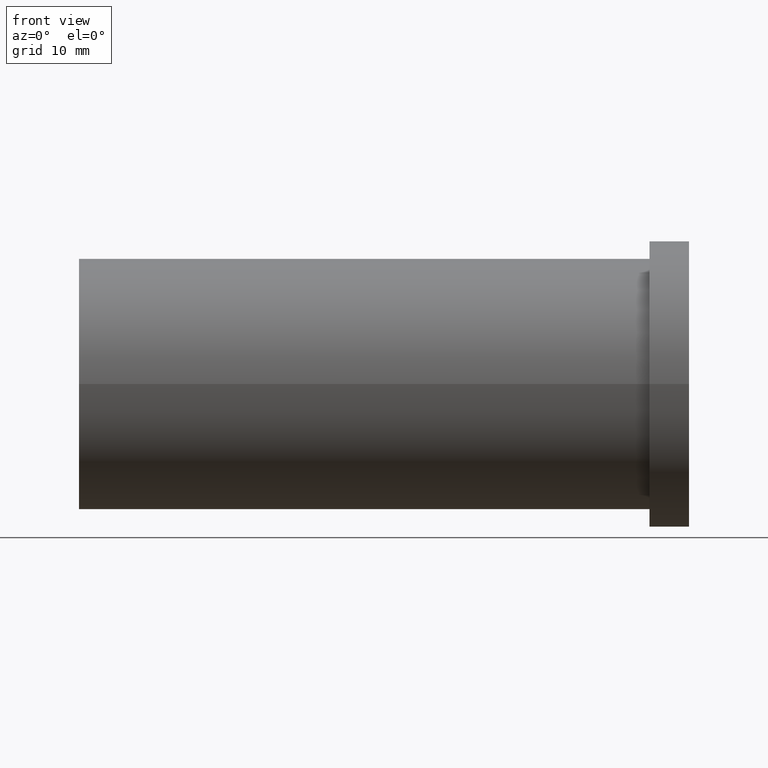
[diagram: clean part render]
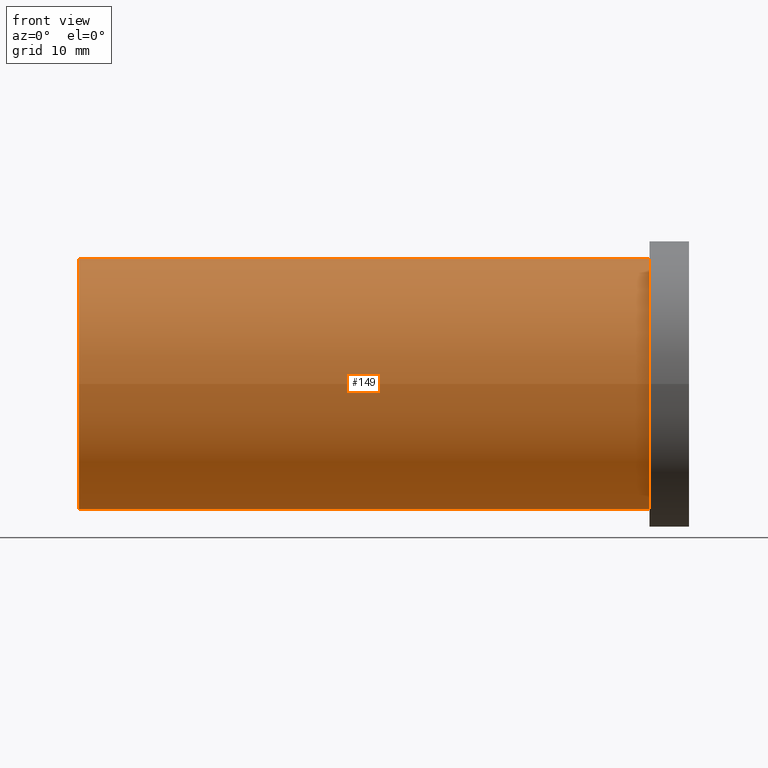
[diagram: same view with one face highlighted and labeled with its STEP entity id]
A machine part, front view. The second image highlights one B-rep face of the part: STEP entity #149.
In plain terms, the highlighted cylindrical surface (bore or boss wall) has radius 15.875 mm, axis along (1, 0, 0).
Its self-contained STEP definition (entity closure, byte-faithful):
#31=FACE_OUTER_BOUND('',#43,.T.);
#43=EDGE_LOOP('',(#130,#131,#132,#133));
#52=LINE('',#284,#59);
#59=VECTOR('',#243,15.8750000000001);
#69=CIRCLE('',#191,15.875);
#70=CIRCLE('',#193,15.8750000000001);
#80=VERTEX_POINT('',#279);
#81=VERTEX_POINT('',#282);
#97=EDGE_CURVE('',#80,#80,#69,.T.);
#98=EDGE_CURVE('',#81,#81,#70,.T.);
#99=EDGE_CURVE('',#81,#80,#52,.T.);
#130=ORIENTED_EDGE('',*,*,#98,.F.);
#131=ORIENTED_EDGE('',*,*,#99,.T.);
#132=ORIENTED_EDGE('',*,*,#97,.T.);
#133=ORIENTED_EDGE('',*,*,#99,.F.);
#140=CYLINDRICAL_SURFACE('',#192,15.8750000000001);
#149=ADVANCED_FACE('',(#31),#140,.T.);
#191=AXIS2_PLACEMENT_3D('',#280,#237,#238);
#192=AXIS2_PLACEMENT_3D('',#281,#239,#240);
#193=AXIS2_PLACEMENT_3D('',#283,#241,#242);
#237=DIRECTION('center_axis',(1.,0.,0.));
#238=DIRECTION('ref_axis',(0.,0.,-1.));
#239=DIRECTION('center_axis',(1.,0.,0.));
#240=DIRECTION('ref_axis',(0.,1.,0.));
#241=DIRECTION('center_axis',(1.,0.,0.));
#242=DIRECTION('ref_axis',(0.,0.,-1.));
#243=DIRECTION('',(-1.,0.,0.));
#279=CARTESIAN_POINT('',(-77.,-15.8750000000001,-1.94412679364643E-15));
#280=CARTESIAN_POINT('Origin',(-77.,0.,0.));
#281=CARTESIAN_POINT('Origin',(-41.,0.,0.));
#282=CARTESIAN_POINT('',(-5.,-15.8750000000001,-1.94412679364643E-15));
#283=CARTESIAN_POINT('Origin',(-5.,0.,0.));
#284=CARTESIAN_POINT('',(-41.,-15.8750000000001,-1.94412679364643E-15));